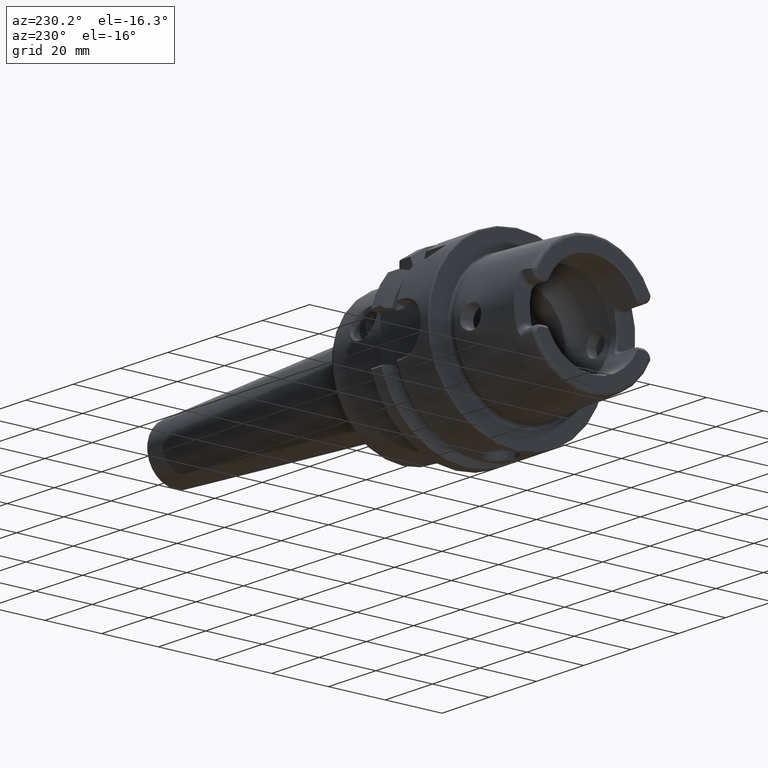
[diagram: clean part render]
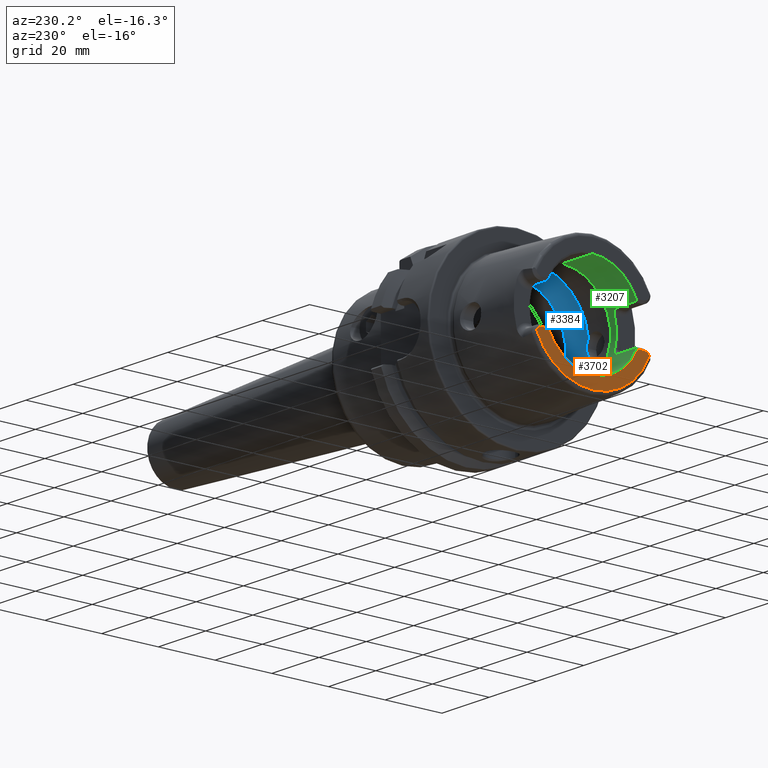
[diagram: same view with three faces highlighted in distinct colors, each labeled with its STEP entity id]
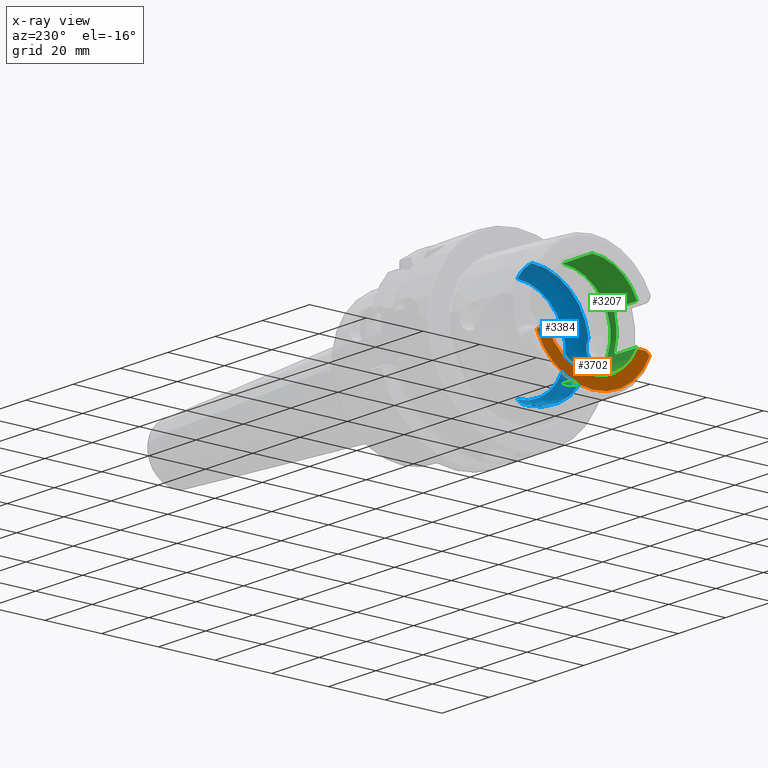
[diagram: x-ray of the same camera — body ghosted, the three highlighted faces saturated]
A machine part, auxiliary view with three faces highlighted in distinct colors.
The next image is the same camera in x-ray (body ghosted, the three faces saturated) — at least one of them is partly hidden behind the body in this view.
Their STEP definitions:

[orange] entity #3702 — the highlighted planar face has unit normal (1, 0, 0).
#88=CARTESIAN_POINT('',(-3.2E1,0.E0,0.E0));
#89=DIRECTION('',(-1.E0,0.E0,0.E0));
#90=DIRECTION('',(0.E0,9.224287428258E-1,-3.861673399044E-1));
#91=AXIS2_PLACEMENT_3D('',#88,#89,#90);
#804=DIRECTION('',(0.E0,1.E0,0.E0));
#805=VECTOR('',#804,2.213010809741E0);
#806=CARTESIAN_POINT('',(-3.2E1,1.577698919026E1,-7.07E0));
#807=LINE('',#806,#805);
#808=DIRECTION('',(0.E0,-1.E0,0.E0));
#809=VECTOR('',#808,2.213010809741E0);
#810=CARTESIAN_POINT('',(-3.2E1,-1.577698919026E1,-7.07E0));
#811=LINE('',#810,#809);
#812=CARTESIAN_POINT('',(-3.2E1,-1.799E1,-9.15E0));
#813=DIRECTION('',(1.E0,0.E0,0.E0));
#814=DIRECTION('',(0.E0,0.E0,1.E0));
#815=AXIS2_PLACEMENT_3D('',#812,#813,#814);
#817=CARTESIAN_POINT('',(-3.2E1,1.799E1,-9.15E0));
#818=DIRECTION('',(-1.E0,0.E0,0.E0));
#819=DIRECTION('',(0.E0,0.E0,1.E0));
#820=AXIS2_PLACEMENT_3D('',#817,#818,#819);
#1188=CARTESIAN_POINT('',(-3.2E1,0.E0,-3.446132268436E-13));
#1189=DIRECTION('',(1.E0,0.E0,0.E0));
#1190=DIRECTION('',(0.E0,-9.125620712653E-1,-4.089382179351E-1));
#1191=AXIS2_PLACEMENT_3D('',#1188,#1189,#1190);
#2737=CARTESIAN_POINT('',(-3.2E1,-1.799E1,-7.07E0));
#2739=VERTEX_POINT('',#2737);
#2740=CARTESIAN_POINT('',(-3.2E1,-1.577698919026E1,-7.07E0));
#2741=VERTEX_POINT('',#2740);
#2742=CARTESIAN_POINT('',(-3.2E1,-1.990238974402E1,-8.331974653830E0));
#2743=VERTEX_POINT('',#2742);
#2755=CARTESIAN_POINT('',(-3.2E1,1.799E1,-7.07E0));
#2757=VERTEX_POINT('',#2755);
#2768=CARTESIAN_POINT('',(-3.2E1,1.577698919026E1,-7.07E0));
#2769=VERTEX_POINT('',#2768);
#2770=CARTESIAN_POINT('',(-3.2E1,1.990238974402E1,-8.331974653830E0));
#2771=VERTEX_POINT('',#2770);
#3688=CARTESIAN_POINT('',(-3.2E1,0.E0,0.E0));
#3689=DIRECTION('',(1.E0,0.E0,0.E0));
#3690=DIRECTION('',(0.E0,0.E0,1.E0));
#3691=AXIS2_PLACEMENT_3D('',#3688,#3689,#3690);
#3692=PLANE('',#3691);
#3693=ORIENTED_EDGE('',*,*,#3040,.F.);
#3695=ORIENTED_EDGE('',*,*,#3694,.F.);
#3696=ORIENTED_EDGE('',*,*,#3657,.T.);
#3697=ORIENTED_EDGE('',*,*,#3646,.T.);
#3698=ORIENTED_EDGE('',*,*,#2999,.F.);
#3699=ORIENTED_EDGE('',*,*,#3020,.F.);
#3700=EDGE_LOOP('',(#3693,#3695,#3696,#3697,#3698,#3699));
#3701=FACE_OUTER_BOUND('',#3700,.F.);
#3702=ADVANCED_FACE('',(#3701),#3692,.F.);
#92=CIRCLE('',#91,2.157607283902E1);
#816=CIRCLE('',#815,2.08E0);
#821=CIRCLE('',#820,2.08E0);
#1192=CIRCLE('',#1191,1.728867513459E1);
#2999=EDGE_CURVE('',#2771,#2743,#92,.T.);
#3020=EDGE_CURVE('',#2757,#2771,#821,.T.);
#3040=EDGE_CURVE('',#2769,#2757,#807,.T.);
#3646=EDGE_CURVE('',#2739,#2743,#816,.T.);
#3657=EDGE_CURVE('',#2741,#2739,#811,.T.);
#3694=EDGE_CURVE('',#2741,#2769,#1192,.T.);

[blue] entity #3384 — the highlighted toroidal blend (fillet) surface has major radius 11.7986 mm and minor (blend) radius 8.2014 mm.
#267=CARTESIAN_POINT('',(9.100685570619E-2,0.E0,0.E0));
#268=DIRECTION('',(1.E0,0.E0,0.E0));
#269=DIRECTION('',(0.E0,0.E0,1.E0));
#270=AXIS2_PLACEMENT_3D('',#267,#268,#269);
#427=CARTESIAN_POINT('',(-6.25E0,-1.983683432405E1,-2.549509756796E0));
#428=CARTESIAN_POINT('',(-6.101283299350E0,-1.985745106764E1,
-2.389098161705E0));
#429=CARTESIAN_POINT('',(-5.823011759718E0,-1.989111915045E1,
-2.033654081724E0));
#430=CARTESIAN_POINT('',(-5.488290434370E0,-1.992204764600E1,
-1.383194941896E0));
#431=CARTESIAN_POINT('',(-5.289411510405E0,-1.993633365189E1,
-6.797937079503E-1));
#432=CARTESIAN_POINT('',(-5.25E0,-1.993880636712E1,-2.232966073821E-1));
#433=CARTESIAN_POINT('',(-5.25E0,-1.993880636712E1,-1.256780224004E-14));
#435=CARTESIAN_POINT('',(-6.25E0,0.E0,-1.179860506927E1));
#436=DIRECTION('',(0.E0,1.E0,0.E0));
#437=DIRECTION('',(7.731620031199E-1,0.E0,-6.342085752586E-1));
#438=AXIS2_PLACEMENT_3D('',#435,#436,#437);
#440=CARTESIAN_POINT('',(-6.25E0,0.E0,1.179860506927E1));
#441=DIRECTION('',(0.E0,-1.E0,0.E0));
#442=DIRECTION('',(7.731620031199E-1,0.E0,6.342085752586E-1));
#443=AXIS2_PLACEMENT_3D('',#440,#441,#442);
#445=CARTESIAN_POINT('',(-5.25E0,-1.993880636712E1,-1.256780224004E-14));
#446=CARTESIAN_POINT('',(-5.25E0,-1.993880636712E1,2.265312399457E-1));
#447=CARTESIAN_POINT('',(-5.290704077549E0,-1.993625163992E1,
6.873696590481E-1));
#448=CARTESIAN_POINT('',(-5.490534556484E0,-1.992186156005E1,1.388204097733E0));
#449=CARTESIAN_POINT('',(-5.824328578687E0,-1.989096611667E1,2.035393791106E0));
#450=CARTESIAN_POINT('',(-6.101748857213E0,-1.985738652689E1,2.389600330454E0));
#451=CARTESIAN_POINT('',(-6.25E0,-1.983683432405E1,2.549509756796E0));
#569=CARTESIAN_POINT('',(-6.25E0,-1.983683432405E1,-2.549509756796E0));
#571=CARTESIAN_POINT('',(-6.25E0,-1.983683432405E1,2.549509756796E0));
#587=CARTESIAN_POINT('',(-6.25E0,0.E0,0.E0));
#588=DIRECTION('',(1.E0,0.E0,0.E0));
#589=DIRECTION('',(0.E0,0.E0,1.E0));
#590=AXIS2_PLACEMENT_3D('',#587,#588,#589);
#600=CARTESIAN_POINT('',(-6.25E0,0.E0,0.E0));
#601=DIRECTION('',(1.E0,0.E0,0.E0));
#602=DIRECTION('',(0.E0,-9.918417211620E-1,-1.274754884772E-1));
#603=AXIS2_PLACEMENT_3D('',#600,#601,#602);
#2495=CARTESIAN_POINT('',(9.100685570619E-2,0.E0,-1.7E1));
#2496=CARTESIAN_POINT('',(9.100685570619E-2,0.E0,1.7E1));
#2497=VERTEX_POINT('',#2495);
#2498=VERTEX_POINT('',#2496);
#2499=CARTESIAN_POINT('',(-6.25E0,0.E0,-1.99999999E1));
#2500=VERTEX_POINT('',#2499);
#2501=CARTESIAN_POINT('',(-6.25E0,0.E0,1.99999999E1));
#2502=VERTEX_POINT('',#2501);
#2794=VERTEX_POINT('',#569);
#2795=VERTEX_POINT('',#571);
#2797=VERTEX_POINT('',#433);
#3364=CARTESIAN_POINT('',(-6.25E0,0.E0,0.E0));
#3365=DIRECTION('',(1.E0,0.E0,0.E0));
#3366=DIRECTION('',(0.E0,0.E0,1.E0));
#3367=AXIS2_PLACEMENT_3D('',#3364,#3365,#3366);
#3368=TOROIDAL_SURFACE('',#3367,1.179860506927E1,8.201394830732E0);
#3370=ORIENTED_EDGE('',*,*,#3369,.F.);
#3372=ORIENTED_EDGE('',*,*,#3371,.T.);
#3374=ORIENTED_EDGE('',*,*,#3373,.F.);
#3375=ORIENTED_EDGE('',*,*,#3175,.F.);
#3377=ORIENTED_EDGE('',*,*,#3376,.T.);
#3379=ORIENTED_EDGE('',*,*,#3378,.T.);
#3381=ORIENTED_EDGE('',*,*,#3380,.F.);
#3382=EDGE_LOOP('',(#3370,#3372,#3374,#3375,#3377,#3379,#3381));
#3383=FACE_OUTER_BOUND('',#3382,.F.);
#3384=ADVANCED_FACE('',(#3383),#3368,.F.);
#271=CIRCLE('',#270,1.7E1);
#434=B_SPLINE_CURVE_WITH_KNOTS('',3,(#427,#428,#429,#430,#431,#432,#433),
.UNSPECIFIED.,.F.,.F.,(4,1,1,1,4),(0.E0,2.5E-1,5.E-1,7.5E-1,1.E0),
.UNSPECIFIED.);
#439=CIRCLE('',#438,8.201394830732E0);
#444=CIRCLE('',#443,8.201394830732E0);
#452=B_SPLINE_CURVE_WITH_KNOTS('',3,(#445,#446,#447,#448,#449,#450,#451),
.UNSPECIFIED.,.F.,.F.,(4,1,1,1,4),(0.E0,2.5E-1,5.E-1,7.5E-1,1.E0),
.UNSPECIFIED.);
#591=CIRCLE('',#590,1.99999999E1);
#604=CIRCLE('',#603,1.99999999E1);
#3175=EDGE_CURVE('',#2498,#2497,#271,.T.);
#3369=EDGE_CURVE('',#2794,#2797,#434,.T.);
#3371=EDGE_CURVE('',#2794,#2500,#604,.T.);
#3373=EDGE_CURVE('',#2497,#2500,#439,.T.);
#3376=EDGE_CURVE('',#2498,#2502,#444,.T.);
#3378=EDGE_CURVE('',#2502,#2795,#591,.T.);
#3380=EDGE_CURVE('',#2797,#2795,#452,.T.);

[green] entity #3207 — the highlighted cylindrical surface (partial cylindrical patch) has radius 17 mm, axis along (1, 0, 0).
#272=CARTESIAN_POINT('',(-3.15E1,0.E0,0.E0));
#273=DIRECTION('',(1.E0,0.E0,0.E0));
#274=DIRECTION('',(0.E0,-9.221396591734E-1,-3.868571428571E-1));
#275=AXIS2_PLACEMENT_3D('',#272,#273,#274);
#277=DIRECTION('',(-1.E0,-6.903792289323E-9,3.402020068072E-11));
#278=VECTOR('',#277,1.250397459548E1);
#279=CARTESIAN_POINT('',(-1.899602540378E1,0.E0,-1.7E1));
#280=LINE('',#279,#278);
#281=CARTESIAN_POINT('',(-1.899602540378E1,0.E0,0.E0));
#282=DIRECTION('',(1.E0,0.E0,0.E0));
#283=DIRECTION('',(0.E0,0.E0,1.E0));
#284=AXIS2_PLACEMENT_3D('',#281,#282,#283);
#286=DIRECTION('',(-1.E0,2.385283683508E-9,-3.366909743156E-11));
#287=VECTOR('',#286,1.271529946137E1);
#288=CARTESIAN_POINT('',(-1.899602540378E1,0.E0,1.7E1));
#289=LINE('',#288,#287);
#290=CARTESIAN_POINT('',(-3.171132486541E1,0.E0,0.E0));
#291=DIRECTION('',(1.E0,0.E0,0.E0));
#292=DIRECTION('',(0.E0,0.E0,1.E0));
#293=AXIS2_PLACEMENT_3D('',#290,#291,#292);
#295=CARTESIAN_POINT('',(-3.171132486541E1,-1.558889454291E1,6.781324865405E0));
#296=CARTESIAN_POINT('',(-3.164317732329E1,-1.561853940455E1,6.713177323292E0));
#297=CARTESIAN_POINT('',(-3.157492591239E1,-1.564769805039E1,6.644925912391E0));
#298=CARTESIAN_POINT('',(-3.150657142857E1,-1.567637420595E1,6.576571428571E0));
#300=DIRECTION('',(-1.E0,7.806493534994E-11,1.337467313864E-10));
#301=VECTOR('',#300,8.006571291236E0);
#302=CARTESIAN_POINT('',(-2.350000013733E1,-1.567637420657E1,6.576571427501E0));
#303=LINE('',#302,#301);
#304=CARTESIAN_POINT('',(-2.149999999319E1,-1.635630409315E1,4.633715190920E0));
#305=CARTESIAN_POINT('',(-2.149837670162E1,-1.630683774285E1,4.808323859179E0));
#306=CARTESIAN_POINT('',(-2.154698674048E1,-1.620558232555E1,5.145031375457E0));
#307=CARTESIAN_POINT('',(-2.175634281348E1,-1.604191635076E1,5.633411327769E0));
#308=CARTESIAN_POINT('',(-2.209010361832E1,-1.589109359561E1,6.043372323205E0));
#309=CARTESIAN_POINT('',(-2.251604562885E1,-1.576970087508E1,6.351365719671E0));
#310=CARTESIAN_POINT('',(-2.300654217394E1,-1.569288971245E1,6.537435918996E0));
#311=CARTESIAN_POINT('',(-2.333316767882E1,-1.567591106793E1,6.577675397064E0));
#312=CARTESIAN_POINT('',(-2.350000013733E1,-1.567637420657E1,6.576571427501E0));
#314=CARTESIAN_POINT('',(-2.15E1,0.E0,0.E0));
#315=DIRECTION('',(-1.E0,0.E0,0.E0));
#316=DIRECTION('',(0.E0,-9.621355498715E-1,-2.725714285714E-1));
#317=AXIS2_PLACEMENT_3D('',#314,#315,#316);
#319=CARTESIAN_POINT('',(-2.349999986317E1,-1.567637420552E1,
-6.576571429211E0));
#320=CARTESIAN_POINT('',(-2.332970719140E1,-1.567611857761E1,
-6.577180761720E0));
#321=CARTESIAN_POINT('',(-2.299840942678E1,-1.569359910657E1,
-6.535750833257E0));
#322=CARTESIAN_POINT('',(-2.251183524324E1,-1.577082022066E1,
-6.348574599471E0));
#323=CARTESIAN_POINT('',(-2.208814623726E1,-1.589177064458E1,
-6.041605818138E0));
#324=CARTESIAN_POINT('',(-2.175385506539E1,-1.604330085675E1,
-5.629517468253E0));
#325=CARTESIAN_POINT('',(-2.154614938594E1,-1.620674011477E1,
-5.141319066030E0));
#326=CARTESIAN_POINT('',(-2.149842226301E1,-1.630728005799E1,
-4.806762546710E0));
#327=CARTESIAN_POINT('',(-2.150000000035E1,-1.635630437232E1,
-4.633714197965E0));
#329=DIRECTION('',(9.999999410129E-1,1.989017162463E-4,-2.800220290254E-4));
#330=VECTOR('',#329,8.002685056695E0);
#331=CARTESIAN_POINT('',(-3.150268444781E1,-1.567796595331E1,
-6.574330501103E0));
#332=LINE('',#331,#330);
#2491=CARTESIAN_POINT('',(-1.899602540378E1,0.E0,-1.7E1));
#2492=CARTESIAN_POINT('',(-1.899602540378E1,0.E0,1.7E1));
#2493=VERTEX_POINT('',#2491);
#2494=VERTEX_POINT('',#2492);
#2670=VERTEX_POINT('',#304);
#2671=VERTEX_POINT('',#312);
#2674=CARTESIAN_POINT('',(-2.15E1,-1.635630434782E1,-4.633714285714E0));
#2675=VERTEX_POINT('',#2674);
#2678=VERTEX_POINT('',#319);
#2706=CARTESIAN_POINT('',(-3.149999999926E1,-8.632484131625E-8,
-1.699999999957E1));
#2707=VERTEX_POINT('',#2706);
#2708=CARTESIAN_POINT('',(-3.171132486516E1,3.032959373375E-8,
1.699999999957E1));
#2709=VERTEX_POINT('',#2708);
#2728=VERTEX_POINT('',#295);
#2729=VERTEX_POINT('',#298);
#2748=CARTESIAN_POINT('',(-3.150268444781E1,-1.567796595331E1,
-6.574330501103E0));
#2749=VERTEX_POINT('',#2748);
#3180=CARTESIAN_POINT('',(0.E0,0.E0,0.E0));
#3181=DIRECTION('',(1.E0,0.E0,0.E0));
#3182=DIRECTION('',(0.E0,0.E0,1.E0));
#3183=AXIS2_PLACEMENT_3D('',#3180,#3181,#3182);
#3184=CYLINDRICAL_SURFACE('',#3183,1.7E1);
#3186=ORIENTED_EDGE('',*,*,#3185,.T.);
#3187=ORIENTED_EDGE('',*,*,#3161,.F.);
#3189=ORIENTED_EDGE('',*,*,#3188,.F.);
#3190=ORIENTED_EDGE('',*,*,#3157,.T.);
#3192=ORIENTED_EDGE('',*,*,#3191,.T.);
#3194=ORIENTED_EDGE('',*,*,#3193,.T.);
#3196=ORIENTED_EDGE('',*,*,#3195,.F.);
#3198=ORIENTED_EDGE('',*,*,#3197,.F.);
#3200=ORIENTED_EDGE('',*,*,#3199,.F.);
#3202=ORIENTED_EDGE('',*,*,#3201,.F.);
#3204=ORIENTED_EDGE('',*,*,#3203,.F.);
#3205=EDGE_LOOP('',(#3186,#3187,#3189,#3190,#3192,#3194,#3196,#3198,#3200,#3202,
#3204));
#3206=FACE_OUTER_BOUND('',#3205,.F.);
#3207=ADVANCED_FACE('',(#3206),#3184,.F.);
#276=CIRCLE('',#275,1.7E1);
#285=CIRCLE('',#284,1.7E1);
#294=CIRCLE('',#293,1.7E1);
#299=B_SPLINE_CURVE_WITH_KNOTS('',3,(#295,#296,#297,#298),.UNSPECIFIED.,.F.,.F.,
(4,4),(0.E0,1.E0),.UNSPECIFIED.);
#313=B_SPLINE_CURVE_WITH_KNOTS('',3,(#304,#305,#306,#307,#308,#309,#310,#311,
#312),.UNSPECIFIED.,.F.,.F.,(4,1,1,1,1,1,4),(0.E0,1.666666666667E-1,
3.333333333333E-1,5.E-1,6.666666666667E-1,8.333333333333E-1,1.E0),
.UNSPECIFIED.);
#318=CIRCLE('',#317,1.7E1);
#328=B_SPLINE_CURVE_WITH_KNOTS('',3,(#319,#320,#321,#322,#323,#324,#325,#326,
#327),.UNSPECIFIED.,.F.,.F.,(4,1,1,1,1,1,4),(0.E0,1.666666666667E-1,
3.333333333333E-1,5.E-1,6.666666666667E-1,8.333333333333E-1,1.E0),
.UNSPECIFIED.);
#3157=EDGE_CURVE('',#2494,#2709,#289,.T.);
#3161=EDGE_CURVE('',#2493,#2707,#280,.T.);
#3185=EDGE_CURVE('',#2749,#2707,#276,.T.);
#3188=EDGE_CURVE('',#2494,#2493,#285,.T.);
#3191=EDGE_CURVE('',#2709,#2728,#294,.T.);
#3193=EDGE_CURVE('',#2728,#2729,#299,.T.);
#3195=EDGE_CURVE('',#2671,#2729,#303,.T.);
#3197=EDGE_CURVE('',#2670,#2671,#313,.T.);
#3199=EDGE_CURVE('',#2675,#2670,#318,.T.);
#3201=EDGE_CURVE('',#2678,#2675,#328,.T.);
#3203=EDGE_CURVE('',#2749,#2678,#332,.T.);